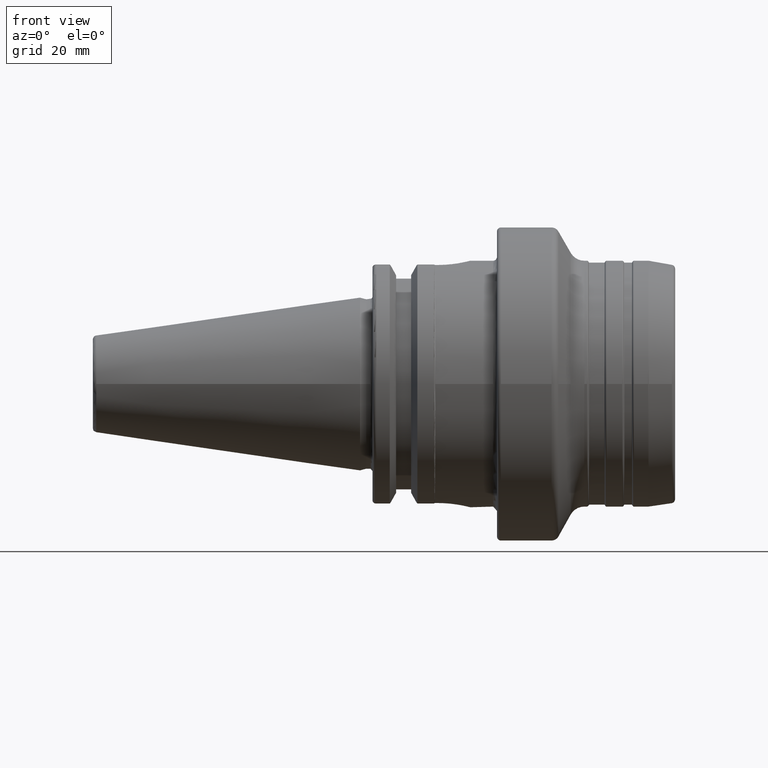
[diagram: clean part render]
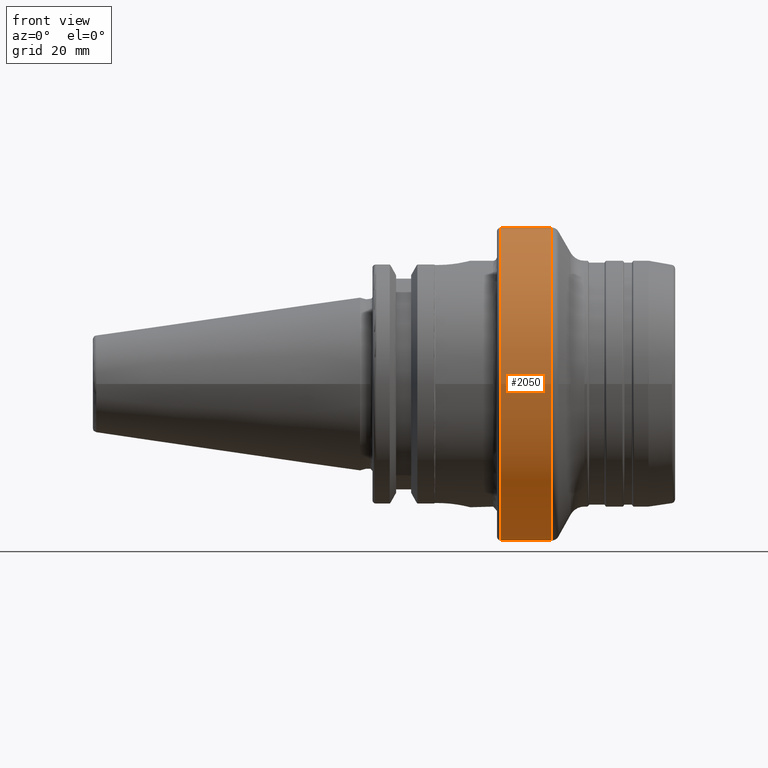
[diagram: same view with one face highlighted and labeled with its STEP entity id]
A machine part, front view. The second image highlights one B-rep face of the part: STEP entity #2050.
In plain terms, the highlighted cylindrical surface (bore or boss wall) has radius 40 mm, axis along (1, 0, 0).
Its self-contained STEP definition (entity closure, byte-faithful):
#130=LINE('',#3546,#219);
#219=VECTOR('',#2650,40.);
#292=CYLINDRICAL_SURFACE('',#2235,40.);
#337=FACE_OUTER_BOUND('',#446,.T.);
#446=EDGE_LOOP('',(#1509,#1510,#1511,#1512,#1513,#1514,#1515,#1516));
#583=CIRCLE('',#2231,40.);
#584=CIRCLE('',#2232,40.);
#586=CIRCLE('',#2234,40.);
#587=CIRCLE('',#2236,40.);
#588=CIRCLE('',#2237,40.);
#589=CIRCLE('',#2238,40.);
#842=VERTEX_POINT('',#3533);
#843=VERTEX_POINT('',#3534);
#844=VERTEX_POINT('',#3536);
#845=VERTEX_POINT('',#3541);
#846=VERTEX_POINT('',#3542);
#847=VERTEX_POINT('',#3544);
#1104=EDGE_CURVE('',#842,#843,#583,.T.);
#1105=EDGE_CURVE('',#843,#844,#584,.T.);
#1107=EDGE_CURVE('',#844,#842,#586,.T.);
#1108=EDGE_CURVE('',#845,#846,#587,.T.);
#1109=EDGE_CURVE('',#847,#845,#588,.T.);
#1110=EDGE_CURVE('',#847,#843,#130,.T.);
#1111=EDGE_CURVE('',#846,#847,#589,.T.);
#1509=ORIENTED_EDGE('',*,*,#1108,.F.);
#1510=ORIENTED_EDGE('',*,*,#1109,.F.);
#1511=ORIENTED_EDGE('',*,*,#1110,.T.);
#1512=ORIENTED_EDGE('',*,*,#1104,.F.);
#1513=ORIENTED_EDGE('',*,*,#1107,.F.);
#1514=ORIENTED_EDGE('',*,*,#1105,.F.);
#1515=ORIENTED_EDGE('',*,*,#1110,.F.);
#1516=ORIENTED_EDGE('',*,*,#1111,.F.);
#2050=ADVANCED_FACE('',(#337),#292,.T.);
#2231=AXIS2_PLACEMENT_3D('',#3535,#2636,#2637);
#2232=AXIS2_PLACEMENT_3D('',#3537,#2638,#2639);
#2234=AXIS2_PLACEMENT_3D('',#3539,#2642,#2643);
#2235=AXIS2_PLACEMENT_3D('',#3540,#2644,#2645);
#2236=AXIS2_PLACEMENT_3D('',#3543,#2646,#2647);
#2237=AXIS2_PLACEMENT_3D('',#3545,#2648,#2649);
#2238=AXIS2_PLACEMENT_3D('',#3547,#2651,#2652);
#2636=DIRECTION('center_axis',(-1.,0.,0.));
#2637=DIRECTION('ref_axis',(0.,-1.,1.83697019872103E-16));
#2638=DIRECTION('center_axis',(-1.,0.,0.));
#2639=DIRECTION('ref_axis',(0.,-1.,1.83697019872103E-16));
#2642=DIRECTION('center_axis',(-1.,0.,0.));
#2643=DIRECTION('ref_axis',(0.,-1.,1.83697019872103E-16));
#2644=DIRECTION('center_axis',(1.,0.,0.));
#2645=DIRECTION('ref_axis',(0.,1.,0.));
#2646=DIRECTION('center_axis',(1.,0.,0.));
#2647=DIRECTION('ref_axis',(0.,-1.,1.83697019872103E-16));
#2648=DIRECTION('center_axis',(1.,0.,0.));
#2649=DIRECTION('ref_axis',(0.,-1.,1.83697019872103E-16));
#2650=DIRECTION('',(-1.,0.,0.));
#2651=DIRECTION('center_axis',(1.,0.,0.));
#2652=DIRECTION('ref_axis',(0.,-1.,1.83697019872103E-16));
#3533=CARTESIAN_POINT('',(36.,40.,-1.22464679914735E-14));
#3534=CARTESIAN_POINT('',(36.,-40.,-4.89858719658941E-15));
#3535=CARTESIAN_POINT('Origin',(36.,0.,0.));
#3536=CARTESIAN_POINT('',(36.,-4.89858719658941E-15,40.));
#3537=CARTESIAN_POINT('Origin',(36.,0.,0.));
#3539=CARTESIAN_POINT('Origin',(36.,0.,0.));
#3540=CARTESIAN_POINT('Origin',(42.5462613559441,0.,0.));
#3541=CARTESIAN_POINT('',(48.9378221735089,40.,-2.44929359829471E-15));
#3542=CARTESIAN_POINT('',(48.9378221735089,-4.89858719658941E-15,40.));
#3543=CARTESIAN_POINT('Origin',(48.9378221735089,0.,0.));
#3544=CARTESIAN_POINT('',(48.9378221735089,-40.,-4.89858719658941E-15));
#3545=CARTESIAN_POINT('Origin',(48.9378221735089,0.,0.));
#3546=CARTESIAN_POINT('',(42.5462613559441,-40.,-4.89858719658941E-15));
#3547=CARTESIAN_POINT('Origin',(48.9378221735089,0.,0.));